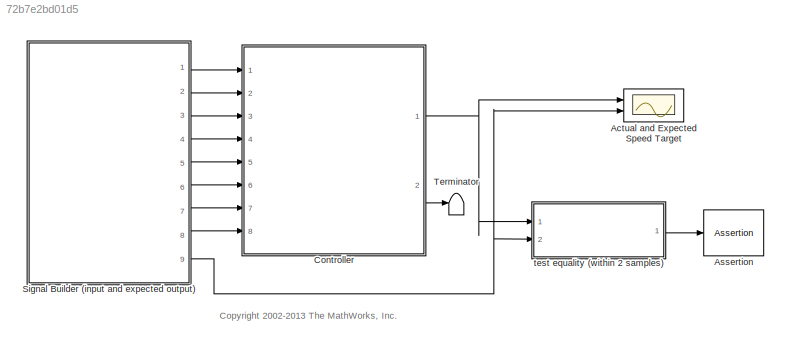
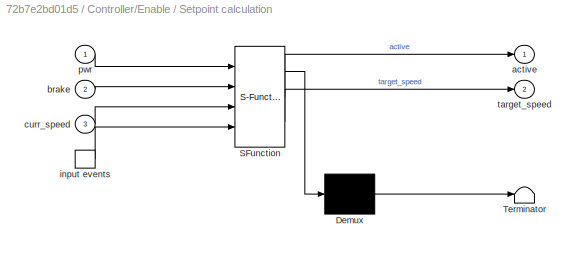
MODEL slx_72b7e2bd01d5
KIND model
CONFIG AbsTol = auto
CONFIG EnableMultiTasking = on
CONFIG FixedStep = auto
CONFIG MaxStep = auto
CONFIG MinStep = auto
CONFIG PreLoadFcn = Kp = 30; Kd = 30; Ki = 10;
CONFIG RelTol = 1e-3
CONFIG SampleTimeConstraint = Unconstrained
CONFIG Solver = ode45
CONFIG SolverName = ode45
CONFIG StartTime = 0.0
CONFIG StopTime = 10.0
BLOCK [Scope] Actual and Expected Speed Target
  NumInputPorts = 2
  Ports = [2]
  ScopeSpecificationString = Simulink.scopes.TimeScopeBlockCfg('CurrentConfiguration', extmgr.ConfigurationSet(extmgr.Configuration('Core','General UI',true),extmgr.Configuration('Core','Source UI',true),extmgr.Configuration('Sources','WiredSimulink',true,'DataLoggingSaveFormat','StructureWithTime','DataLoggingLimitDataPoints',true,'DataLoggingDecimation','1'),extmgr.Configuration('Visuals','Time Domain',true,'SerializedDispl...<+2408ch>
BLOCK [Assertion] Assertion
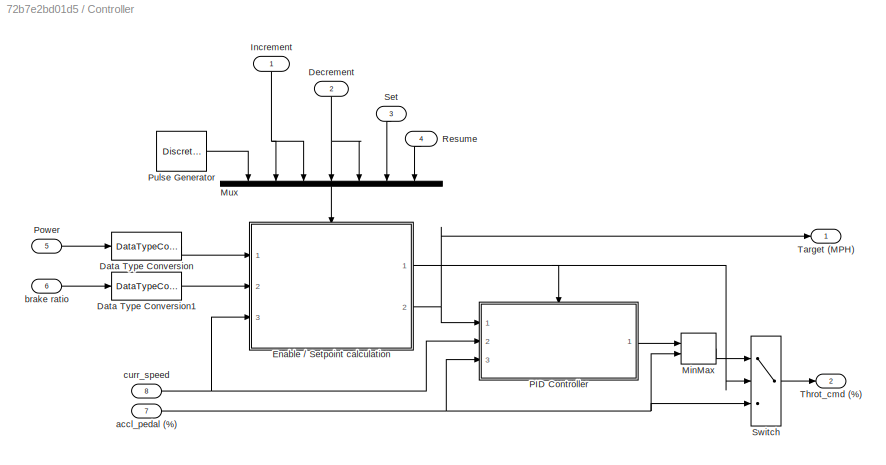
BLOCK [SubSystem] Controller
  Ports = [8, 2]
  RequestExecContextInheritance = off
  Variant = off
BLOCK [DataTypeConversion] Controller/Data Type Conversion
  OutDataTypeStr = boolean
  RndMeth = Floor
  SaturateOnIntegerOverflow = off
BLOCK [DataTypeConversion] Controller/Data Type Conversion1
  OutDataTypeStr = boolean
  RndMeth = Floor
  SaturateOnIntegerOverflow = off
BLOCK [Inport] Controller/Decrement
  IconDisplay = Port number
  Port = 2
BLOCK [SubSystem] Controller/Enable // Setpoint calculation
  ErrorFcn = Stateflow.Translate.translate
  PermitHierarchicalResolution = ExplicitOnly
  Ports = [3, 2, 0, 1]
  RequestExecContextInheritance = off
  SFBlockType = Chart
  TreatAsAtomicUnit = on
  Variant = off
BLOCK [Demux] Controller/Enable // Setpoint calculation/ Demux 
  Outputs = 1
  Ports = [1, 1]
BLOCK [S-Function] Controller/Enable // Setpoint calculation/ SFunction 
  EnableBusSupport = off
  FunctionName = sf_sfun
  PortCounts = [4 3]
  Ports = [4, 3]
  SFcnIsStateOwnerBlock = off
  SFunctionDeploymentMode = off
  Tag = Stateflow S-Function sf_cruise_control_test 2
BLOCK [Terminator] Controller/Enable // Setpoint calculation/ Terminator 
BLOCK [Outport] Controller/Enable // Setpoint calculation/ active
  IconDisplay = Port number
BLOCK [TriggerPort] Controller/Enable // Setpoint calculation/ input events 
  Ports = [0, 1]
  ShowOutputPort = on
  TriggerType = either
  VariantControl = (inherit)
  ZeroCross = off
BLOCK [Inport] Controller/Enable // Setpoint calculation/brake
  IconDisplay = Port number
  Port = 2
BLOCK [Inport] Controller/Enable // Setpoint calculation/curr_speed
  IconDisplay = Port number
  Port = 3
BLOCK [Inport] Controller/Enable // Setpoint calculation/pwr
  IconDisplay = Port number
BLOCK [Outport] Controller/Enable // Setpoint calculation/target_speed
  IconDisplay = Port number
  Port = 2
BLOCK [Inport] Controller/Increment
  IconDisplay = Port number
BLOCK [MinMax] Controller/MinMax
  Function = max
  Inputs = 2
  Ports = [2, 1]
  ZeroCross = off
BLOCK [Mux] Controller/Mux
  DisplayOption = bar
  Inputs = 7
  Ports = [7, 1]
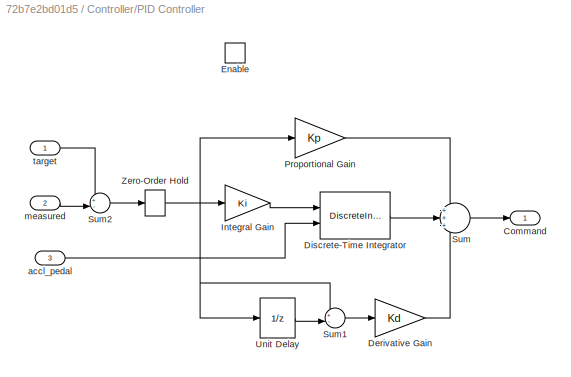
BLOCK [SubSystem] Controller/PID Controller
  Ports = [3, 1, 1]
  RequestExecContextInheritance = off
  TreatAsAtomicUnit = on
  Variant = off
BLOCK [Outport] Controller/PID Controller/Command
  IconDisplay = Port number
BLOCK [Gain] Controller/PID Controller/Derivative Gain
  Gain = Kd
BLOCK [DiscreteIntegrator] Controller/PID Controller/Discrete-Time Integrator
  ICPrevOutput = DiscIntNeverNeededParam
  ICPrevScaledInput = DiscIntNeverNeededParam
  InitialConditionSource = external
  LowerSaturationLimit = -20
  Ports = [2, 1]
  SampleTime = 0.1
  UpperSaturationLimit = 20
BLOCK [EnablePort] Controller/PID Controller/Enable
  Ports = []
  StatesWhenEnabling = reset
  ZeroCross = off
BLOCK [Gain] Controller/PID Controller/Integral Gain
  Gain = Ki
BLOCK [Gain] Controller/PID Controller/Proportional Gain
  Gain = Kp
BLOCK [Sum] Controller/PID Controller/Sum
  IconShape = round
  Inputs = +++
  Ports = [3, 1]
BLOCK [Sum] Controller/PID Controller/Sum1
  IconShape = round
  Inputs = +-|
  Ports = [2, 1]
BLOCK [Sum] Controller/PID Controller/Sum2
  IconShape = round
  Inputs = +-|
  Ports = [2, 1]
BLOCK [UnitDelay] Controller/PID Controller/Unit Delay
  SampleTime = 0.1
BLOCK [ZeroOrderHold] Controller/PID Controller/Zero-Order Hold
  SampleTime = 0.1
BLOCK [Inport] Controller/PID Controller/accl_pedal
  IconDisplay = Port number
  Port = 3
BLOCK [Inport] Controller/PID Controller/measured
  IconDisplay = Port number
  Port = 2
BLOCK [Inport] Controller/PID Controller/target
  IconDisplay = Port number
BLOCK [Inport] Controller/Power
  IconDisplay = Port number
  Port = 5
BLOCK [DiscretePulseGenerator] Controller/Pulse Generator
  Ports = [0, 1]
  SampleTime = .05
BLOCK [Inport] Controller/Resume
  IconDisplay = Port number
  Port = 4
BLOCK [Inport] Controller/Set
  IconDisplay = Port number
  Port = 3
BLOCK [Switch] Controller/Switch
  SaturateOnIntegerOverflow = off
  Threshold = 1
  ZeroCross = off
BLOCK [Outport] Controller/Target (MPH)
  IconDisplay = Port number
BLOCK [Outport] Controller/Throt_cmd (%)
  IconDisplay = Port number
  Port = 2
BLOCK [Inport] Controller/accl_pedal (%)
  IconDisplay = Port number
  Port = 7
BLOCK [Inport] Controller/brake ratio
  IconDisplay = Port number
  Port = 6
BLOCK [Inport] Controller/curr_speed
  IconDisplay = Port number
  Port = 8
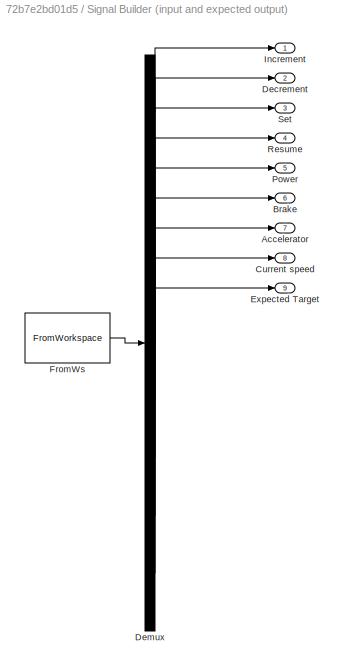
BLOCK [SubSystem] Signal Builder (input and expected output)
  ClipboardFcn = sigbuilder_block('clipboard');
  CloseFcn = sigbuilder_block('close');
  ContinueFcn = sigbuilder_block('continue')
  CopyFcn = sigbuilder_block('copy');
  DeleteFcn = sigbuilder_block('delete');
  LoadFcn = sigbuilder_block('load');
  MaskHideContents = on
  ModelCloseFcn = sigbuilder_block('modelClose');
  NameChangeFcn = sigbuilder_block('namechange');
  OpenFcn = sigbuilder_block('open',[41.25 267.75 391.5 268.5 ]);
  PauseFcn = sigbuilder_block('pause')
  Ports = [0, 9]
  PreSaveFcn = sigbuilder_block('preSave');
  RequestExecContextInheritance = off
  StartFcn = sigbuilder_block('start');
  StopFcn = sigbuilder_block('stop');
  Tag = STV Subsys
  Variant = off
BLOCK [Outport] Signal Builder (input and expected output)/Accelerator
  IconDisplay = Port number
  Port = 7
  Tag = STV Outport
BLOCK [Outport] Signal Builder (input and expected output)/Brake
  IconDisplay = Port number
  Port = 6
  Tag = STV Outport
BLOCK [Outport] Signal Builder (input and expected output)/Current speed
  IconDisplay = Port number
  Port = 8
  Tag = STV Outport
BLOCK [Outport] Signal Builder (input and expected output)/Decrement
  IconDisplay = Port number
  Port = 2
  Tag = STV Outport
BLOCK [Demux] Signal Builder (input and expected output)/Demux
  Outputs = 9
  Ports = [1, 9]
  Tag = STV Demux
BLOCK [Outport] Signal Builder (input and expected output)/Expected Target
  IconDisplay = Port number
  Port = 9
  Tag = STV Outport
BLOCK [FromWorkspace] Signal Builder (input and expected output)/FromWs
  OutputAfterFinalValue = Holding final value
  SampleTime = 0
  Tag = STV FromWs
  VariableName = tuvar
BLOCK [Outport] Signal Builder (input and expected output)/Increment
  IconDisplay = Port number
  Tag = STV Outport
BLOCK [Outport] Signal Builder (input and expected output)/Power
  IconDisplay = Port number
  Port = 5
  Tag = STV Outport
BLOCK [Outport] Signal Builder (input and expected output)/Resume
  IconDisplay = Port number
  Port = 4
  Tag = STV Outport
BLOCK [Outport] Signal Builder (input and expected output)/Set
  IconDisplay = Port number
  Port = 3
  Tag = STV Outport
BLOCK [Terminator] Terminator
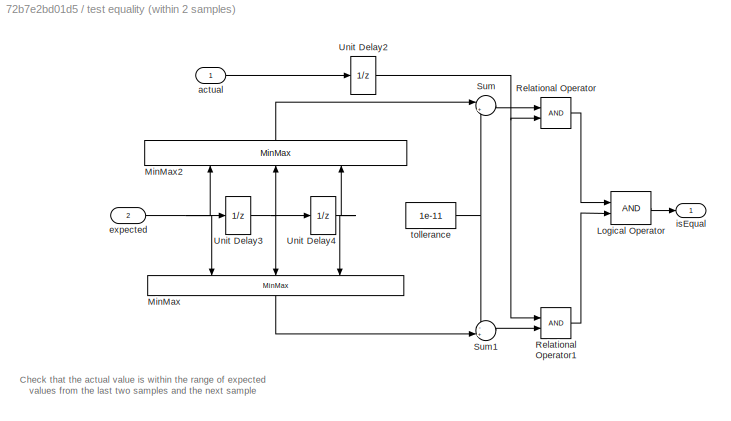
BLOCK [SubSystem] test equality (within 2 samples)
  Ports = [2, 1]
  RequestExecContextInheritance = off
  Variant = off
BLOCK [Logic] test equality (within 2 samples)/Logical Operator
  Ports = [2, 1]
BLOCK [MinMax] test equality (within 2 samples)/MinMax
  Inputs = 3
  Ports = [3, 1]
  ZeroCross = off
BLOCK [MinMax] test equality (within 2 samples)/MinMax2
  Function = max
  Inputs = 3
  Ports = [3, 1]
  ZeroCross = off
BLOCK [RelationalOperator] test equality (within 2 samples)/Relational Operator
  Ports = [2, 1]
  ZeroCross = off
BLOCK [RelationalOperator] test equality (within 2 samples)/Relational Operator1
  Ports = [2, 1]
  ZeroCross = off
BLOCK [Sum] test equality (within 2 samples)/Sum
  IconShape = round
  Inputs = |++
  Ports = [2, 1]
BLOCK [Sum] test equality (within 2 samples)/Sum1
  IconShape = round
  Inputs = -+|
  Ports = [2, 1]
BLOCK [UnitDelay] test equality (within 2 samples)/Unit Delay2
  SampleTime = 0.1
BLOCK [UnitDelay] test equality (within 2 samples)/Unit Delay3
  SampleTime = 0.1
BLOCK [UnitDelay] test equality (within 2 samples)/Unit Delay4
  SampleTime = 0.1
BLOCK [Inport] test equality (within 2 samples)/actual
  IconDisplay = Port number
BLOCK [Inport] test equality (within 2 samples)/expected
  IconDisplay = Port number
  Port = 2
BLOCK [Outport] test equality (within 2 samples)/isEqual
  IconDisplay = Port number
BLOCK [Constant] test equality (within 2 samples)/tollerance
  Value = 1e-11
ANNOTATION (root): <copyright redacted>
ANNOTATION test equality (within 2 samples): Check that the actual value is within the range of expected values from the last two samples and the next sample
LINE Controller/Data Type Conversion1:1 -> Controller/Enable // Setpoint calculation:2
LINE Controller/Data Type Conversion:1 -> Controller/Enable // Setpoint calculation:1
NET Controller/Decrement:1 -> Controller/Mux:4, Controller/Mux:5
NET Controller/Enable // Setpoint calculation:1 -> Controller/PID Controller:enable, Controller/Switch:2
NET Controller/Enable // Setpoint calculation:2 -> Controller/PID Controller:1, Controller/Target (MPH):1
NET Controller/Increment:1 -> Controller/Mux:2, Controller/Mux:3
LINE Controller/MinMax:1 -> Controller/Switch:1
LINE Controller/Mux:1 -> Controller/Enable // Setpoint calculation:trigger
LINE Controller/PID Controller/Derivative Gain:1 -> Controller/PID Controller/Sum:3
LINE Controller/PID Controller/Discrete-Time Integrator:1 -> Controller/PID Controller/Sum:2
LINE Controller/PID Controller/Integral Gain:1 -> Controller/PID Controller/Discrete-Time Integrator:1
LINE Controller/PID Controller/Proportional Gain:1 -> Controller/PID Controller/Sum:1
LINE Controller/PID Controller/Sum1:1 -> Controller/PID Controller/Derivative Gain:1
LINE Controller/PID Controller/Sum2:1 -> Controller/PID Controller/Zero-Order Hold:1
LINE Controller/PID Controller/Sum:1 -> Controller/PID Controller/Command:1
LINE Controller/PID Controller/Unit Delay:1 -> Controller/PID Controller/Sum1:2
NET Controller/PID Controller/Zero-Order Hold:1 -> Controller/PID Controller/Integral Gain:1, Controller/PID Controller/Proportional Gain:1, Controller/PID Controller/Sum1:1, Controller/PID Controller/Unit Delay:1
LINE Controller/PID Controller/accl_pedal:1 -> Controller/PID Controller/Discrete-Time Integrator:2
LINE Controller/PID Controller/measured:1 -> Controller/PID Controller/Sum2:2
LINE Controller/PID Controller/target:1 -> Controller/PID Controller/Sum2:1
LINE Controller/PID Controller:1 -> Controller/MinMax:1
LINE Controller/Power:1 -> Controller/Data Type Conversion:1
LINE Controller/Pulse Generator:1 -> Controller/Mux:1
LINE Controller/Resume:1 -> Controller/Mux:7
LINE Controller/Set:1 -> Controller/Mux:6
LINE Controller/Switch:1 -> Controller/Throt_cmd (%):1
NET Controller/accl_pedal (%):1 -> Controller/MinMax:2, Controller/PID Controller:3, Controller/Switch:3
LINE Controller/brake ratio:1 -> Controller/Data Type Conversion1:1
NET Controller/curr_speed:1 -> Controller/Enable // Setpoint calculation:3, Controller/PID Controller:2
NET Controller:1 -> Actual and Expected Speed Target:1, test equality (within 2 samples):1
LINE Controller:2 -> Terminator:1
LINE Signal Builder (input and expected output)/Demux:1 -> Signal Builder (input and expected output)/Increment:1
LINE Signal Builder (input and expected output)/Demux:2 -> Signal Builder (input and expected output)/Decrement:1
LINE Signal Builder (input and expected output)/Demux:3 -> Signal Builder (input and expected output)/Set:1
LINE Signal Builder (input and expected output)/Demux:4 -> Signal Builder (input and expected output)/Resume:1
LINE Signal Builder (input and expected output)/Demux:5 -> Signal Builder (input and expected output)/Power:1
LINE Signal Builder (input and expected output)/Demux:6 -> Signal Builder (input and expected output)/Brake:1
LINE Signal Builder (input and expected output)/Demux:7 -> Signal Builder (input and expected output)/Accelerator:1
LINE Signal Builder (input and expected output)/Demux:8 -> Signal Builder (input and expected output)/Current speed:1
LINE Signal Builder (input and expected output)/Demux:9 -> Signal Builder (input and expected output)/Expected Target:1
LINE Signal Builder (input and expected output)/FromWs:1 -> Signal Builder (input and expected output)/Demux:1
LINE Signal Builder (input and expected output):1 -> Controller:1
LINE Signal Builder (input and expected output):2 -> Controller:2
LINE Signal Builder (input and expected output):3 -> Controller:3
LINE Signal Builder (input and expected output):4 -> Controller:4
LINE Signal Builder (input and expected output):5 -> Controller:5
LINE Signal Builder (input and expected output):6 -> Controller:6
LINE Signal Builder (input and expected output):7 -> Controller:7
LINE Signal Builder (input and expected output):8 -> Controller:8
NET Signal Builder (input and expected output):9 -> Actual and Expected Speed Target:2, test equality (within 2 samples):2
LINE test equality (within 2 samples)/Logical Operator:1 -> test equality (within 2 samples)/isEqual:1
LINE test equality (within 2 samples)/MinMax2:1 -> test equality (within 2 samples)/Sum:1
LINE test equality (within 2 samples)/MinMax:1 -> test equality (within 2 samples)/Sum1:2
LINE test equality (within 2 samples)/Relational Operator1:1 -> test equality (within 2 samples)/Logical Operator:2
LINE test equality (within 2 samples)/Relational Operator:1 -> test equality (within 2 samples)/Logical Operator:1
LINE test equality (within 2 samples)/Sum1:1 -> test equality (within 2 samples)/Relational Operator1:2
LINE test equality (within 2 samples)/Sum:1 -> test equality (within 2 samples)/Relational Operator:1
NET test equality (within 2 samples)/Unit Delay2:1 -> test equality (within 2 samples)/Relational Operator1:1, test equality (within 2 samples)/Relational Operator:2
NET test equality (within 2 samples)/Unit Delay3:1 -> test equality (within 2 samples)/MinMax2:2, test equality (within 2 samples)/MinMax:2, test equality (within 2 samples)/Unit Delay4:1
NET test equality (within 2 samples)/Unit Delay4:1 -> test equality (within 2 samples)/MinMax2:3, test equality (within 2 samples)/MinMax:3
LINE test equality (within 2 samples)/actual:1 -> test equality (within 2 samples)/Unit Delay2:1
NET test equality (within 2 samples)/expected:1 -> test equality (within 2 samples)/MinMax2:1, test equality (within 2 samples)/MinMax:1, test equality (within 2 samples)/Unit Delay3:1
NET test equality (within 2 samples)/tollerance:1 -> test equality (within 2 samples)/Sum1:1, test equality (within 2 samples)/Sum:2
LINE test equality (within 2 samples):1 -> Assertion:1
note: NET lines group one-source signal fan-out (src -> all destinations, sorted); 1:1 wires keep LINE
CHART Controller/Enable / Setpoint calculation states=10 transitions=18
  STATE_LABEL 'Set_Point_Calculation'
  STATE_LABEL 'Decrement\nen: target_speed--;'
  STATE_LABEL 'every(10,Update)\n{target_speed--;}'
  STATE_LABEL 'Increment\nen: target_speed++;'
  STATE_LABEL 'every(10,Update)\n{target_speed++;}'
  STATE_LABEL 'Hold'
  STATE_LABEL 'Resume [pwr]'
  STATE_LABEL 'Set [pwr]\n{\ntarget_speed = curr_speed;\nset_speed = curr_speed;\n}'
  STATE_LABEL '[set_speed > 0]\n\n{target_speed = ...\nset_speed;}'
  STATE_LABEL 'DEC_BU'
  STATE_LABEL 'INC_BU'
  STATE_LABEL 'DEC_BD\n[in(Enable.on.active)]'
  STATE_LABEL 'INC_BD\n[in(Enable.on.active)]'
  STATE_LABEL 'Decrement\nen: target_speed--;'
  STATE_LABEL 'every(10,Update)\n{target_speed--;}'
  STATE_LABEL 'Increment\nen: target_speed++;'
  STATE_LABEL 'every(10,Update)\n{target_speed++;}'
  STATE_LABEL 'Hold'
  STATE_LABEL 'Resume [pwr]'
  STATE_LABEL 'Set [pwr]\n{\ntarget_speed = curr_speed;\nset_speed = curr_speed;\n}'
  STATE_LABEL '[set_speed > 0]\n\n{target_speed = ...\nset_speed;}'
  STATE_LABEL 'Enable'
  STATE_LABEL 'on'
  STATE_LABEL 'overide\ntarget_speed = 0;'
  STATE_LABEL 'no_target'
  STATE_LABEL 'active'
  STATE_LABEL 'Set | Resume'
  STATE_LABEL '[brake]'
  STATE_LABEL 'Set'
  STATE_LABEL 'Off'
  STATE_LABEL '[!pwr]'
  STATE_LABEL '[pwr]'
  STATE_LABEL 'on'
  STATE_LABEL 'overide\ntarget_speed = 0;'
  STATE_LABEL 'no_target'
  STATE_LABEL 'active'
  STATE_LABEL 'Set | Resume'
  STATE_LABEL '[brake]'
  STATE_LABEL 'Set'
  STATE_LABEL 'overide\ntarget_speed = 0;'
